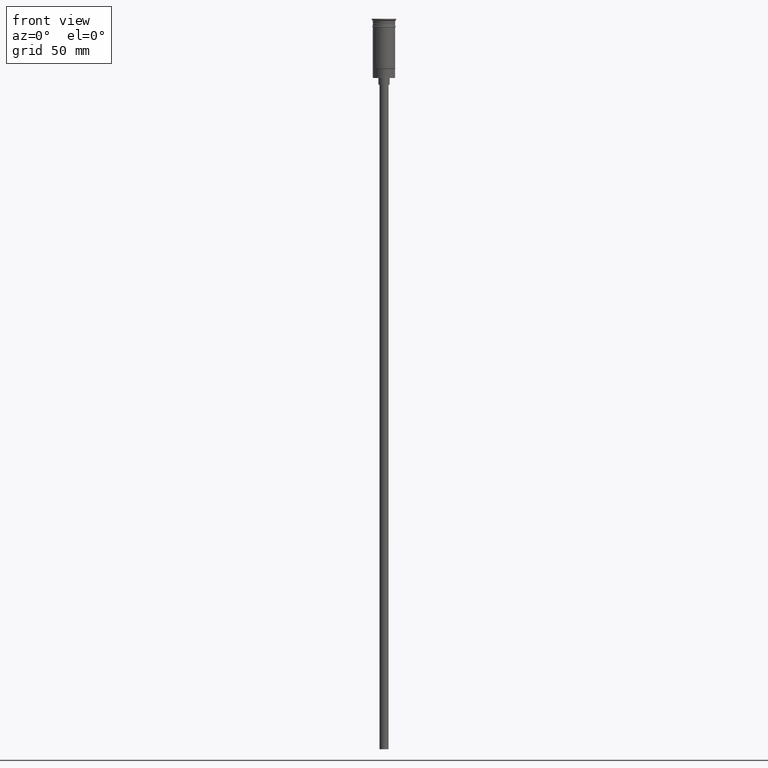
[diagram: clean part render]
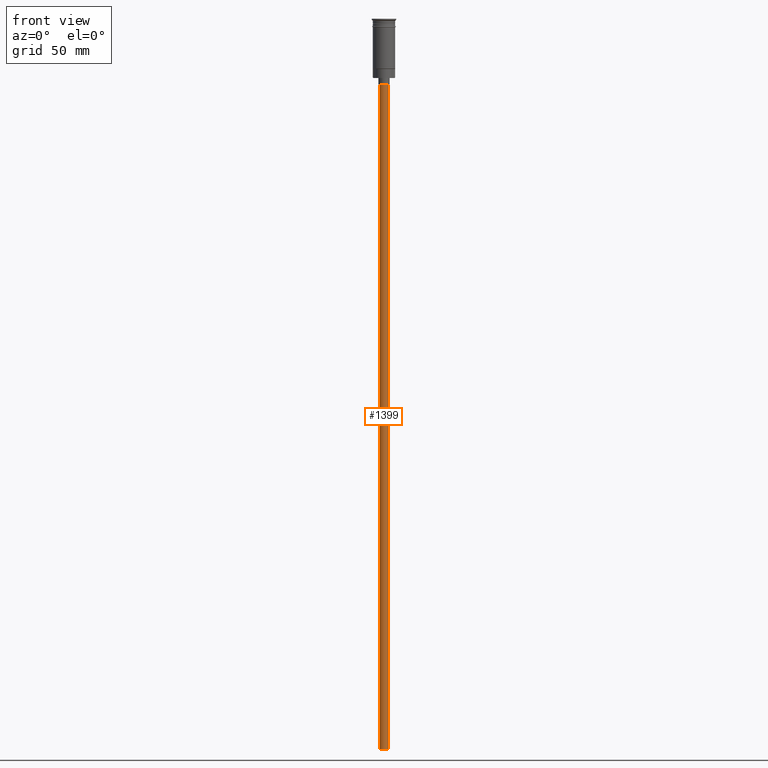
[diagram: same view with one face highlighted and labeled with its STEP entity id]
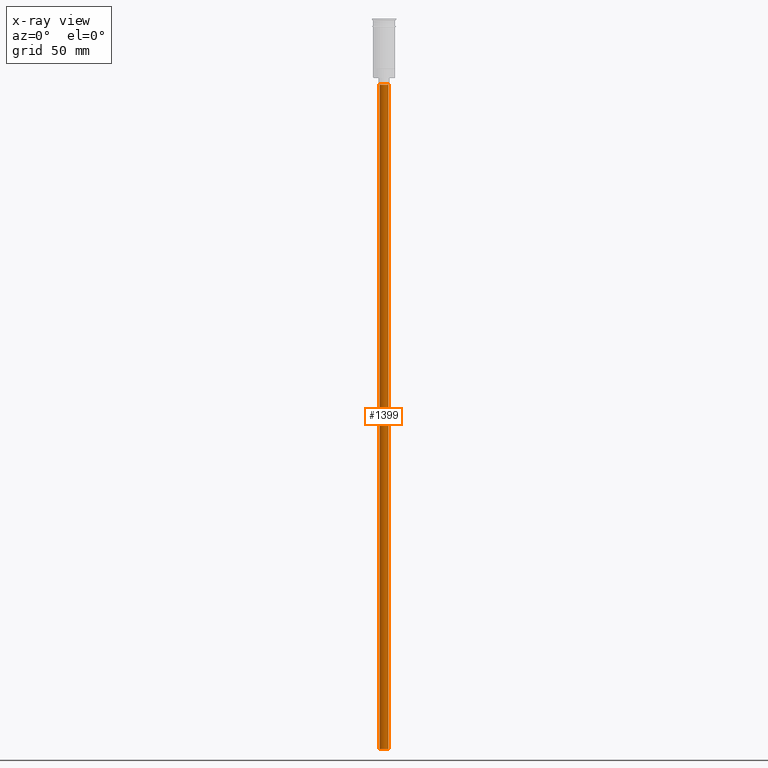
[diagram: x-ray of the same camera — body ghosted, the highlighted face saturated]
A machine part, front view. The second image highlights one B-rep face of the part: STEP entity #1399.
The next image is the same camera in x-ray: the body ghosted, the highlighted face saturated — about 0% of this face is hidden behind the body in this view.
In plain terms, the highlighted cylindrical surface (edge-blend (fillet) strip) has radius 2 mm, axis along (-0, -0, 1).
Its self-contained STEP definition (entity closure, byte-faithful):
#9 = DIRECTION ( 'NONE',  ( 0.000000000000000000, 0.000000000000000000, -1.000000000000000000 ) ) ;
#22 = DIRECTION ( 'NONE',  ( -1.000000000000000000, 0.000000000000000000, 0.000000000000000000 ) ) ;
#136 = CIRCLE ( 'NONE', #267, 2.000000000000000000 ) ;
#242 = AXIS2_PLACEMENT_3D ( 'NONE', #1285, #778, #906 ) ;
#267 = AXIS2_PLACEMENT_3D ( 'NONE', #1488, #9, #22 ) ;
#302 = CYLINDRICAL_SURFACE ( 'NONE', #242, 2.000000000000000000 ) ;
#339 = CARTESIAN_POINT ( 'NONE',  ( -2.000000000000000000, 2.449293598294706414E-16, -29.50000000000000000 ) ) ;
#378 = CARTESIAN_POINT ( 'NONE',  ( -2.000000000000000000, 2.449293598294706414E-16, -326.5000000000000000 ) ) ;
#386 = LINE ( 'NONE', #378, #1361 ) ;
#416 = CARTESIAN_POINT ( 'NONE',  ( 0.000000000000000000, 0.000000000000000000, -29.50000000000000000 ) ) ;
#427 = ORIENTED_EDGE ( 'NONE', *, *, #1110, .F. ) ;
#464 = EDGE_CURVE ( 'NONE', #994, #1013, #386, .T. ) ;
#555 = VERTEX_POINT ( 'NONE', #661 ) ;
#612 = EDGE_CURVE ( 'NONE', #555, #1013, #1073, .T. ) ;
#661 = CARTESIAN_POINT ( 'NONE',  ( 2.000000000000000000, 0.000000000000000000, -29.50000000000000000 ) ) ;
#778 = DIRECTION ( 'NONE',  ( -0.000000000000000000, -0.000000000000000000, 1.000000000000000000 ) ) ;
#791 = FACE_OUTER_BOUND ( 'NONE', #808, .T. ) ;
#808 = EDGE_LOOP ( 'NONE', ( #830, #427, #1143, #1564 ) ) ;
#830 = ORIENTED_EDGE ( 'NONE', *, *, #464, .F. ) ;
#852 = CARTESIAN_POINT ( 'NONE',  ( 2.000000000000000000, 0.000000000000000000, -326.5000000000000000 ) ) ;
#886 = DIRECTION ( 'NONE',  ( -1.000000000000000000, 0.000000000000000000, 0.000000000000000000 ) ) ;
#895 = DIRECTION ( 'NONE',  ( 0.000000000000000000, 0.000000000000000000, -1.000000000000000000 ) ) ;
#906 = DIRECTION ( 'NONE',  ( 1.000000000000000000, 0.000000000000000000, 0.000000000000000000 ) ) ;
#925 = VECTOR ( 'NONE', #1039, 1000.000000000000000 ) ;
#994 = VERTEX_POINT ( 'NONE', #1433 ) ;
#1013 = VERTEX_POINT ( 'NONE', #339 ) ;
#1039 = DIRECTION ( 'NONE',  ( -0.000000000000000000, -0.000000000000000000, 1.000000000000000000 ) ) ;
#1065 = LINE ( 'NONE', #1407, #925 ) ;
#1073 = CIRCLE ( 'NONE', #1286, 2.000000000000000000 ) ;
#1110 = EDGE_CURVE ( 'NONE', #1489, #994, #136, .T. ) ;
#1143 = ORIENTED_EDGE ( 'NONE', *, *, #1348, .T. ) ;
#1267 = DIRECTION ( 'NONE',  ( -0.000000000000000000, -0.000000000000000000, 1.000000000000000000 ) ) ;
#1285 = CARTESIAN_POINT ( 'NONE',  ( 0.000000000000000000, 0.000000000000000000, -326.5000000000000000 ) ) ;
#1286 = AXIS2_PLACEMENT_3D ( 'NONE', #416, #895, #886 ) ;
#1348 = EDGE_CURVE ( 'NONE', #1489, #555, #1065, .T. ) ;
#1361 = VECTOR ( 'NONE', #1267, 1000.000000000000000 ) ;
#1399 = ADVANCED_FACE ( 'NONE', ( #791 ), #302, .T. ) ;
#1407 = CARTESIAN_POINT ( 'NONE',  ( 2.000000000000000000, 0.000000000000000000, -326.5000000000000000 ) ) ;
#1433 = CARTESIAN_POINT ( 'NONE',  ( -2.000000000000000000, 2.449293598294706414E-16, -326.5000000000000000 ) ) ;
#1488 = CARTESIAN_POINT ( 'NONE',  ( 0.000000000000000000, 0.000000000000000000, -326.5000000000000000 ) ) ;
#1489 = VERTEX_POINT ( 'NONE', #852 ) ;
#1564 = ORIENTED_EDGE ( 'NONE', *, *, #612, .T. ) ;